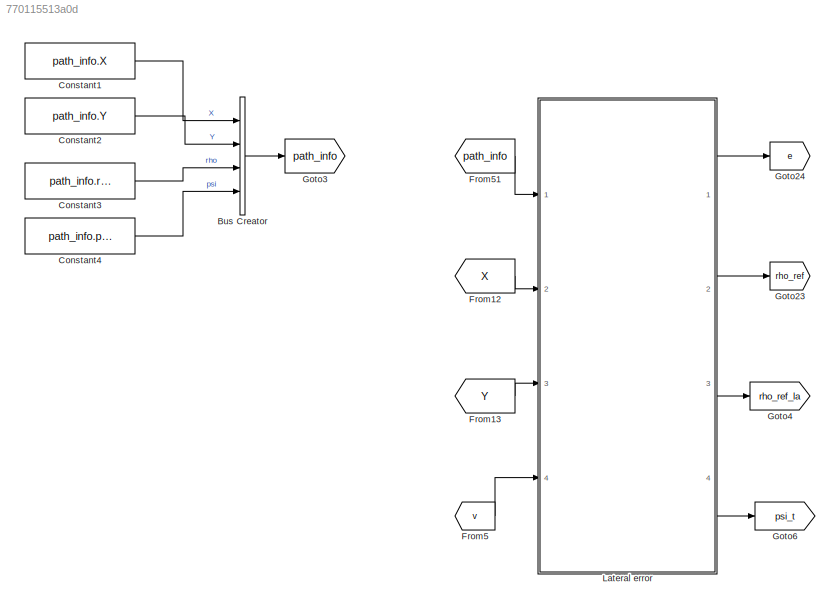
MODEL slx_770115513a0d
KIND model
CONFIG AbsTol = auto
CONFIG EnableMultiTasking = off
CONFIG FixedStep = auto
CONFIG MaxStep = auto
CONFIG MinStep = auto
CONFIG RelTol = 1e-3
CONFIG SampleTimeConstraint = Unconstrained
CONFIG Solver = VariableStepAuto
CONFIG SolverName = VariableStepAuto
CONFIG StartTime = 0.0
CONFIG StopTime = 10.0
BLOCK [BusCreator] Bus Creator
  DisplayOption = bar
  InheritFromInputs = on
  Inputs = 4
  Ports = [4, 1]
BLOCK [Constant] Constant1
  Value = path_info.X
BLOCK [Constant] Constant2
  Value = path_info.Y
BLOCK [Constant] Constant3
  Value = path_info.rho
BLOCK [Constant] Constant4
  Value = path_info.psi
BLOCK [From] From12
  GotoTag = X
  TagVisibility = global
BLOCK [From] From13
  GotoTag = Y
  TagVisibility = global
BLOCK [From] From5
  GotoTag = v
  TagVisibility = global
BLOCK [From] From51
  GotoTag = path_info
  TagVisibility = global
BLOCK [Goto] Goto23
  GotoTag = rho_ref
  TagVisibility = global
BLOCK [Goto] Goto24
  GotoTag = e
  TagVisibility = global
BLOCK [Goto] Goto3
  GotoTag = path_info
  TagVisibility = global
BLOCK [Goto] Goto4
  GotoTag = rho_ref_la
  TagVisibility = global
BLOCK [Goto] Goto6
  GotoTag = psi_t
  TagVisibility = global
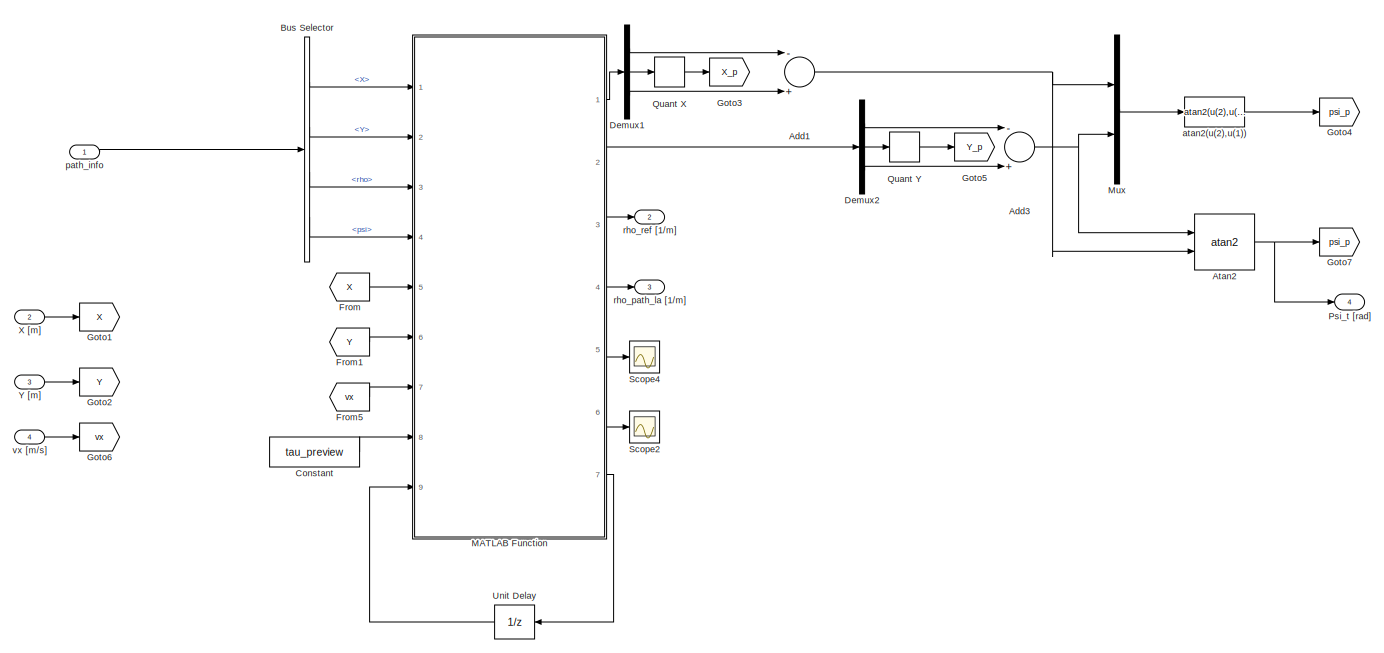
[diagram: Lateral error - part 1/2, left side, full height]
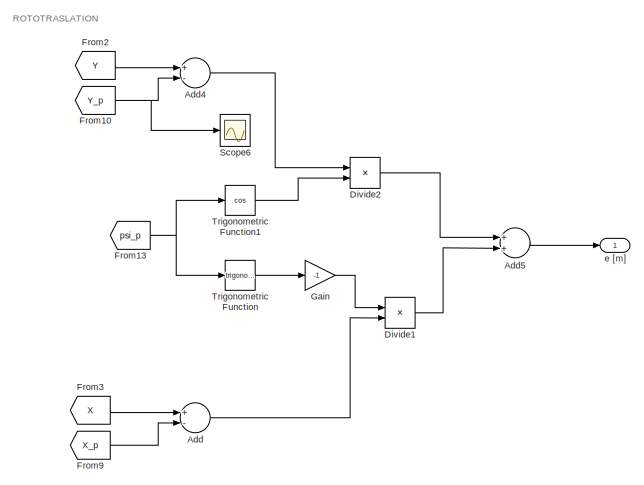
[diagram: Lateral error - part 2/2, middle right region]
BLOCK [SubSystem] Lateral error
  Ports = [4, 4]
  RequestExecContextInheritance = off
  Variant = off
BLOCK [Sum] Lateral error/Add
  InputSameDT = off
  Inputs = +-
  OutDataTypeStr = Inherit: Inherit via internal rule
  Ports = [2, 1]
  SaturateOnIntegerOverflow = off
BLOCK [Sum] Lateral error/Add1
  InputSameDT = off
  Inputs = -+
  OutDataTypeStr = Inherit: Inherit via internal rule
  Ports = [2, 1]
  SaturateOnIntegerOverflow = off
BLOCK [Sum] Lateral error/Add3
  InputSameDT = off
  Inputs = -+
  OutDataTypeStr = Inherit: Inherit via internal rule
  Ports = [2, 1]
  SaturateOnIntegerOverflow = off
BLOCK [Sum] Lateral error/Add4
  InputSameDT = off
  Inputs = +-
  OutDataTypeStr = Inherit: Inherit via internal rule
  Ports = [2, 1]
  SaturateOnIntegerOverflow = off
BLOCK [Sum] Lateral error/Add5
  InputSameDT = off
  OutDataTypeStr = Inherit: Inherit via internal rule
  Ports = [2, 1]
  SaturateOnIntegerOverflow = off
BLOCK [Trigonometry] Lateral error/Atan2
  Operator = atan2
  Ports = [2, 1]
BLOCK [BusSelector] Lateral error/Bus Selector
  OutputAsBus = off
  OutputSignals = X,Y,rho,psi
  Ports = [1, 4]
BLOCK [Constant] Lateral error/Constant
  Value = tau_preview
BLOCK [Demux] Lateral error/Demux1
  DisplayOption = bar
  Outputs = 3
  Ports = [1, 3]
BLOCK [Demux] Lateral error/Demux2
  DisplayOption = bar
  Outputs = 3
  Ports = [1, 3]
BLOCK [Product] Lateral error/Divide1
  InputSameDT = off
  Inputs = **
  OutDataTypeStr = Inherit: Inherit via internal rule
  Ports = [2, 1]
  RndMeth = Floor
  SaturateOnIntegerOverflow = off
BLOCK [Product] Lateral error/Divide2
  InputSameDT = off
  Inputs = **
  OutDataTypeStr = Inherit: Inherit via internal rule
  Ports = [2, 1]
  RndMeth = Floor
  SaturateOnIntegerOverflow = off
BLOCK [From] Lateral error/From
  GotoTag = X
BLOCK [From] Lateral error/From1
  GotoTag = Y
BLOCK [From] Lateral error/From10
  GotoTag = Y_p
BLOCK [From] Lateral error/From13
  GotoTag = psi_p
BLOCK [From] Lateral error/From2
  GotoTag = Y
BLOCK [From] Lateral error/From3
  GotoTag = X
BLOCK [From] Lateral error/From5
  GotoTag = vx
BLOCK [From] Lateral error/From9
  GotoTag = X_p
BLOCK [Gain] Lateral error/Gain
  Gain = -1
  OutDataTypeStr = Inherit: Inherit via internal rule
  ParamDataTypeStr = Inherit: Inherit via internal rule
  SaturateOnIntegerOverflow = off
BLOCK [Goto] Lateral error/Goto1
  GotoTag = X
BLOCK [Goto] Lateral error/Goto2
  GotoTag = Y
BLOCK [Goto] Lateral error/Goto3
  GotoTag = X_p
BLOCK [Goto] Lateral error/Goto4
  Commented = on
  GotoTag = psi_p
BLOCK [Goto] Lateral error/Goto5
  GotoTag = Y_p
BLOCK [Goto] Lateral error/Goto6
  GotoTag = vx
BLOCK [Goto] Lateral error/Goto7
  GotoTag = psi_p
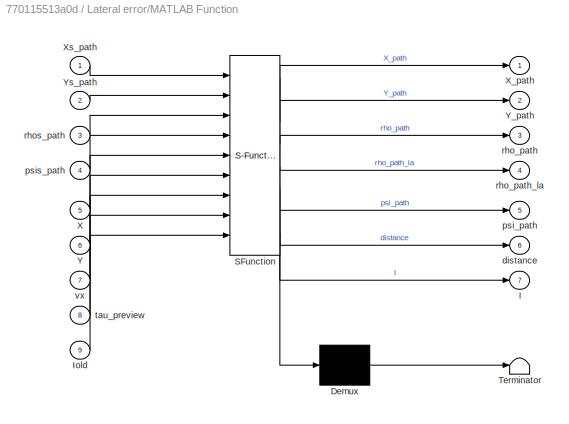
BLOCK [SubSystem] Lateral error/MATLAB Function
  ErrorFcn = Stateflow.Translate.translate
  PermitHierarchicalResolution = ExplicitOnly
  Ports = [9, 7]
  RequestExecContextInheritance = off
  SFBlockType = MATLAB Function
  TreatAsAtomicUnit = on
  Variant = off
BLOCK [Demux] Lateral error/MATLAB Function/ Demux 
  Outputs = 1
  Ports = [1, 1]
BLOCK [S-Function] Lateral error/MATLAB Function/ SFunction 
  EnableBusSupport = on
  FunctionName = sf_sfun
  PortCounts = [9 8]
  Ports = [9, 8]
  SFcnIsStateOwnerBlock = off
  SFunctionDeploymentMode = off
  Tag = Stateflow S-Function error_computation 9
BLOCK [Terminator] Lateral error/MATLAB Function/ Terminator 
BLOCK [Outport] Lateral error/MATLAB Function/I
  IconDisplay = Port number
  Port = 7
BLOCK [Inport] Lateral error/MATLAB Function/Iold
  IconDisplay = Port number
  Port = 9
BLOCK [Inport] Lateral error/MATLAB Function/X
  IconDisplay = Port number
  Port = 5
BLOCK [Outport] Lateral error/MATLAB Function/X_path
  IconDisplay = Port number
BLOCK [Inport] Lateral error/MATLAB Function/Xs_path
  IconDisplay = Port number
BLOCK [Inport] Lateral error/MATLAB Function/Y
  IconDisplay = Port number
  Port = 6
BLOCK [Outport] Lateral error/MATLAB Function/Y_path
  IconDisplay = Port number
  Port = 2
BLOCK [Inport] Lateral error/MATLAB Function/Ys_path
  IconDisplay = Port number
  Port = 2
BLOCK [Outport] Lateral error/MATLAB Function/distance
  IconDisplay = Port number
  Port = 6
BLOCK [Outport] Lateral error/MATLAB Function/psi_path
  IconDisplay = Port number
  Port = 5
BLOCK [Inport] Lateral error/MATLAB Function/psis_path
  IconDisplay = Port number
  Port = 4
BLOCK [Outport] Lateral error/MATLAB Function/rho_path
  IconDisplay = Port number
  Port = 3
BLOCK [Outport] Lateral error/MATLAB Function/rho_path_la
  IconDisplay = Port number
  Port = 4
BLOCK [Inport] Lateral error/MATLAB Function/rhos_path
  IconDisplay = Port number
  Port = 3
BLOCK [Inport] Lateral error/MATLAB Function/tau_preview
  IconDisplay = Port number
  Port = 8
BLOCK [Inport] Lateral error/MATLAB Function/vx
  IconDisplay = Port number
  Port = 7
BLOCK [Mux] Lateral error/Mux
  DisplayOption = bar
  Inputs = 2
  Ports = [2, 1]
BLOCK [Outport] Lateral error/Psi_t [rad]
  IconDisplay = Port number
  Port = 4
BLOCK [Quantizer] Lateral error/Quant X
  Commented = through
  QuantizationInterval = 0.007
BLOCK [Quantizer] Lateral error/Quant Y
  Commented = through
  QuantizationInterval = 0.01
BLOCK [Scope] Lateral error/Scope2
  NumInputPorts = 1
  Ports = [1]
  ScopeSpecificationString = Simulink.scopes.TimeScopeBlockCfg('CurrentConfiguration', extmgr.ConfigurationSet(extmgr.Configuration('Core','General UI',true),extmgr.Configuration('Core','Source UI',true),extmgr.Configuration('Sources','WiredSimulink',true,'DataLoggingVariableName','ScopeData3'),extmgr.Configuration('Visuals','Time Domain',true,'SerializedDisplays',{struct('MinYLimReal','-0.44198','MaxYLimReal','3.98284','YLab...<+1460ch>
BLOCK [Scope] Lateral error/Scope4
  NumInputPorts = 1
  Ports = [1]
  ScopeSpecificationString = Simulink.scopes.TimeScopeBlockCfg('CurrentConfiguration', extmgr.ConfigurationSet(extmgr.Configuration('Core','General UI',true),extmgr.Configuration('Core','Source UI',true),extmgr.Configuration('Sources','WiredSimulink',true,'DataLoggingVariableName','ScopeData1'),extmgr.Configuration('Visuals','Time Domain',true,'SerializedDisplays',{struct('MinYLimReal','-0.44198','MaxYLimReal','3.98284','YLab...<+1460ch>
BLOCK [Scope] Lateral error/Scope6
  NumInputPorts = 1
  Ports = [1]
  ScopeSpecificationString = C++SS(StrPVP('SaveName','ScopeData2'),StrPVP('SaveName','ScopeData3'),StrPVP('LimitDataPoints','on'),StrPVP('DataFormat','Array'),StrPVP('Decimation','1'),StrPVP('BlockParamSampleInput','off'))
BLOCK [Trigonometry] Lateral error/Trigonometric Function
  Ports = [1, 1]
BLOCK [Trigonometry] Lateral error/Trigonometric Function1
  Operator = cos
  Ports = [1, 1]
BLOCK [UnitDelay] Lateral error/Unit Delay
  InitialCondition = I_i
  InputProcessing = Elements as channels (sample based)
  SampleTime = -1
BLOCK [Inport] Lateral error/X [m]
  IconDisplay = Port number
  Port = 2
BLOCK [Inport] Lateral error/Y [m]
  IconDisplay = Port number
  Port = 3
BLOCK [Fcn] Lateral error/atan2(u(2),u(1))
  Commented = on
  Expr = atan2(u(2),u(1))
BLOCK [Outport] Lateral error/e [m]
  IconDisplay = Port number
BLOCK [Inport] Lateral error/path_info
  IconDisplay = Port number
BLOCK [Outport] Lateral error/rho_path_la [1//m]
  IconDisplay = Port number
  Port = 3
BLOCK [Outport] Lateral error/rho_ref [1//m]
  IconDisplay = Port number
  Port = 2
BLOCK [Inport] Lateral error/vx [m//s]
  IconDisplay = Port number
  Port = 4
ANNOTATION Lateral error: ROTOTRASLATION
LINE Bus Creator:1 -> Goto3:1
LINE Constant1:1 -> Bus Creator:1
LINE Constant2:1 -> Bus Creator:2
LINE Constant3:1 -> Bus Creator:3
LINE Constant4:1 -> Bus Creator:4
LINE From12:1 -> Lateral error:2
LINE From13:1 -> Lateral error:3
LINE From51:1 -> Lateral error:1
LINE From5:1 -> Lateral error:4
NET Lateral error/Add1:1 -> Lateral error/Atan2:2, Lateral error/Mux:1
NET Lateral error/Add3:1 -> Lateral error/Atan2:1, Lateral error/Mux:2
LINE Lateral error/Add4:1 -> Lateral error/Divide2:1
LINE Lateral error/Add5:1 -> Lateral error/e [m]:1
LINE Lateral error/Add:1 -> Lateral error/Divide1:2
NET Lateral error/Atan2:1 -> Lateral error/Goto7:1, Lateral error/Psi_t [rad]:1
LINE Lateral error/Bus Selector:1 -> Lateral error/MATLAB Function:1
LINE Lateral error/Bus Selector:2 -> Lateral error/MATLAB Function:2
LINE Lateral error/Bus Selector:3 -> Lateral error/MATLAB Function:3
LINE Lateral error/Bus Selector:4 -> Lateral error/MATLAB Function:4
LINE Lateral error/Constant:1 -> Lateral error/MATLAB Function:8
LINE Lateral error/Demux1:1 -> Lateral error/Add1:1
LINE Lateral error/Demux1:2 -> Lateral error/Quant X:1
LINE Lateral error/Demux1:3 -> Lateral error/Add1:2
LINE Lateral error/Demux2:1 -> Lateral error/Add3:1
LINE Lateral error/Demux2:2 -> Lateral error/Quant Y:1
LINE Lateral error/Demux2:3 -> Lateral error/Add3:2
LINE Lateral error/Divide1:1 -> Lateral error/Add5:2
LINE Lateral error/Divide2:1 -> Lateral error/Add5:1
NET Lateral error/From10:1 -> Lateral error/Add4:2, Lateral error/Scope6:1
NET Lateral error/From13:1 -> Lateral error/Trigonometric Function1:1, Lateral error/Trigonometric Function:1
LINE Lateral error/From1:1 -> Lateral error/MATLAB Function:6
LINE Lateral error/From2:1 -> Lateral error/Add4:1
LINE Lateral error/From3:1 -> Lateral error/Add:1
LINE Lateral error/From5:1 -> Lateral error/MATLAB Function:7
LINE Lateral error/From9:1 -> Lateral error/Add:2
LINE Lateral error/From:1 -> Lateral error/MATLAB Function:5
LINE Lateral error/Gain:1 -> Lateral error/Divide1:1
LINE Lateral error/MATLAB Function:1 -> Lateral error/Demux1:1
LINE Lateral error/MATLAB Function:2 -> Lateral error/Demux2:1
LINE Lateral error/MATLAB Function:3 -> Lateral error/rho_ref [1//m]:1
LINE Lateral error/MATLAB Function:4 -> Lateral error/rho_path_la [1//m]:1
LINE Lateral error/MATLAB Function:5 -> Lateral error/Scope4:1
LINE Lateral error/MATLAB Function:6 -> Lateral error/Scope2:1
LINE Lateral error/MATLAB Function:7 -> Lateral error/Unit Delay:1
LINE Lateral error/Mux:1 -> Lateral error/atan2(u(2),u(1)):1
LINE Lateral error/Quant X:1 -> Lateral error/Goto3:1
LINE Lateral error/Quant Y:1 -> Lateral error/Goto5:1
LINE Lateral error/Trigonometric Function1:1 -> Lateral error/Divide2:2
LINE Lateral error/Trigonometric Function:1 -> Lateral error/Gain:1
LINE Lateral error/Unit Delay:1 -> Lateral error/MATLAB Function:9
LINE Lateral error/X [m]:1 -> Lateral error/Goto1:1
LINE Lateral error/Y [m]:1 -> Lateral error/Goto2:1
LINE Lateral error/atan2(u(2),u(1)):1 -> Lateral error/Goto4:1
LINE Lateral error/path_info:1 -> Lateral error/Bus Selector:1
LINE Lateral error/vx [m//s]:1 -> Lateral error/Goto6:1
LINE Lateral error:1 -> Goto24:1
LINE Lateral error:2 -> Goto23:1
LINE Lateral error:3 -> Goto4:1
LINE Lateral error:4 -> Goto6:1
note: NET lines group one-source signal fan-out (src -> all destinations, sorted); 1:1 wires keep LINE
CHART Lateral error/MATLAB Function states=1 transitions=1
  STATE_LABEL 'eML_blk_kernel()'
  STATE_LABEL 'SCRIPT:\nfunction [X_path,Y_path,rho_path,rho_path_la,psi_path,distance,I] = fcn(Xs_path,Ys_path,rhos_path,psis_path,X,Y,vx,tau_preview,Iold)\n% ...\n% returns coordinates, heading and distance of the nearest path point\n% do not consider the car going backwards \n\nI_max=min(Iold+100,length(Xs_path));\n\nXs_path_tmp=Xs_path(Iold:I_max);\nYs_path_tmp=Ys_path(Iold:I_max);\n\n[distance,Itmp]=min(sqrt((Xs_path_...<+283ch>'
